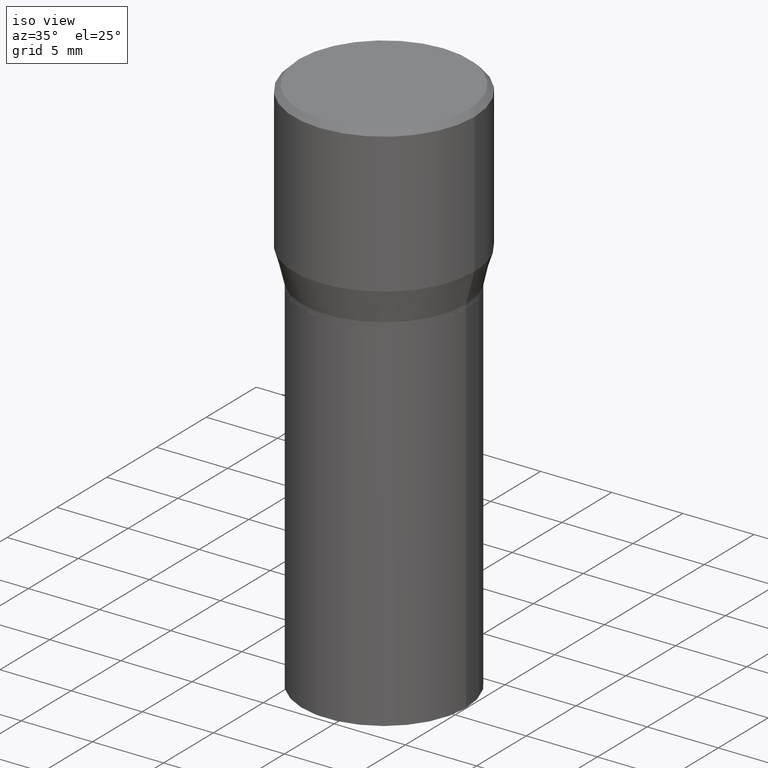
[diagram: clean part render]
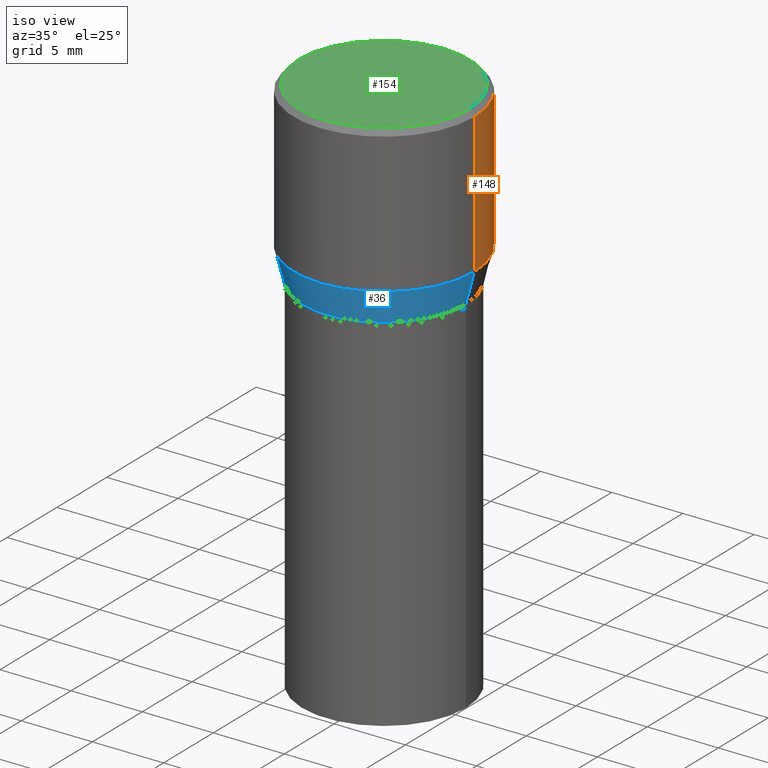
[diagram: same view with three faces highlighted in distinct colors, each labeled with its STEP entity id]
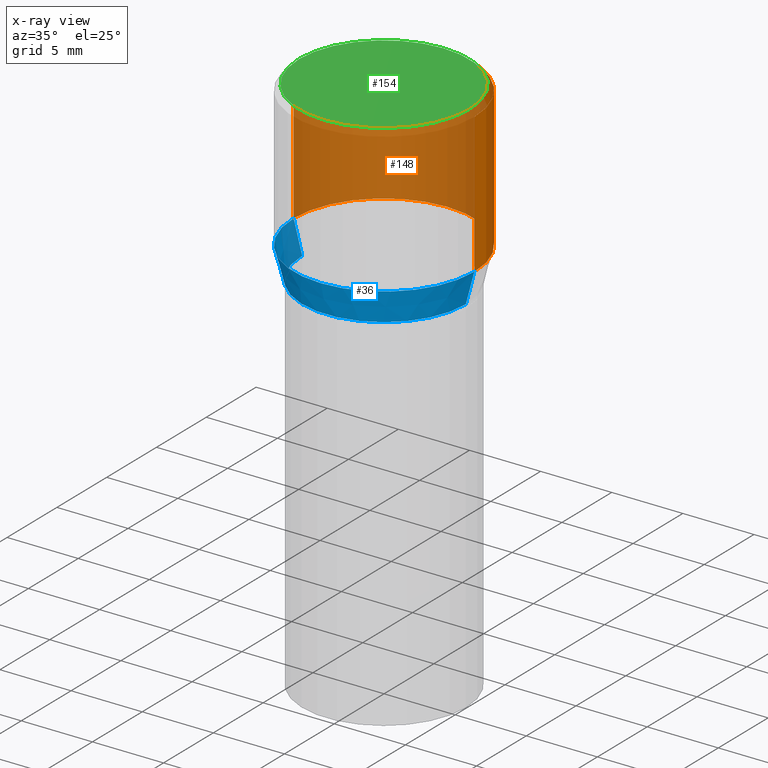
[diagram: x-ray of the same camera — body ghosted, the three highlighted faces saturated]
A machine part, iso view with three faces highlighted in distinct colors.
The next image is the same camera in x-ray (body ghosted, the three faces saturated) — at least one of them is partly hidden behind the body in this view.
Their STEP definitions:

[orange] entity #148 — the highlighted cylindrical surface (partial cylindrical patch) has radius 6.35 mm, axis along (-0, 0, 1).
#15 = CIRCLE ( 'NONE', #117, 0.2500000000000000000 ) ;
#30 = VERTEX_POINT ( 'NONE', #360 ) ;
#42 = LINE ( 'NONE', #114, #307 ) ;
#43 = CARTESIAN_POINT ( 'NONE',  ( 9.842606206466859638E-30, -1.405263310189985589E-15, -0.4024834085625100810 ) ) ;
#47 = CARTESIAN_POINT ( 'NONE',  ( 3.668203209277705088E-31, -5.237222008264718399E-17, -0.01499999999999999944 ) ) ;
#65 = CYLINDRICAL_SURFACE ( 'NONE', #254, 0.2500000000000000000 ) ;
#83 = DIRECTION ( 'NONE',  ( -2.445468806185136597E-29, 3.491481338843145583E-15, 1.000000000000000000 ) ) ;
#92 = FACE_OUTER_BOUND ( 'NONE', #162, .T. ) ;
#114 = CARTESIAN_POINT ( 'NONE',  ( 0.2500000000000000000, -1.745740669421566678E-15, 1.219044193948983948E-29 ) ) ;
#117 = AXIS2_PLACEMENT_3D ( 'NONE', #47, #275, #312 ) ;
#121 = CARTESIAN_POINT ( 'NONE',  ( -0.2500000000000000000, 3.710935292102651716E-16, -0.4024834085625100810 ) ) ;
#124 = CARTESIAN_POINT ( 'NONE',  ( -0.2500000000000000000, 1.776356839400250465E-15, -1.229733772563726445E-29 ) ) ;
#136 = VERTEX_POINT ( 'NONE', #138 ) ;
#138 = CARTESIAN_POINT ( 'NONE',  ( 0.2500000000000000000, -1.798112889504214151E-15, -0.01499999999999999944 ) ) ;
#148 = ADVANCED_FACE ( 'NONE', ( #92 ), #65, .T. ) ;
#156 = DIRECTION ( 'NONE',  ( -2.445468806185136877E-29, 3.491481338843145188E-15, 1.000000000000000000 ) ) ;
#157 = CIRCLE ( 'NONE', #268, 0.2500000000000000000 ) ;
#162 = EDGE_LOOP ( 'NONE', ( #213, #409, #279, #277 ) ) ;
#195 = DIRECTION ( 'NONE',  ( 1.000000000000000000, -6.982962677686265922E-15, 0.000000000000000000 ) ) ;
#213 = ORIENTED_EDGE ( 'NONE', *, *, #330, .T. ) ;
#214 = CARTESIAN_POINT ( 'NONE',  ( 0.000000000000000000, 0.000000000000000000, 0.000000000000000000 ) ) ;
#226 = EDGE_CURVE ( 'NONE', #252, #136, #42, .T. ) ;
#239 = DIRECTION ( 'NONE',  ( -2.445468806185136597E-29, 3.491481338843145583E-15, 1.000000000000000000 ) ) ;
#252 = VERTEX_POINT ( 'NONE', #269 ) ;
#254 = AXIS2_PLACEMENT_3D ( 'NONE', #214, #239, #449 ) ;
#268 = AXIS2_PLACEMENT_3D ( 'NONE', #43, #83, #195 ) ;
#269 = CARTESIAN_POINT ( 'NONE',  ( 0.2500000000000000000, -3.151003979611552069E-15, -0.4024834085625100810 ) ) ;
#275 = DIRECTION ( 'NONE',  ( -2.445468806185136597E-29, 3.491481338843145583E-15, 1.000000000000000000 ) ) ;
#277 = ORIENTED_EDGE ( 'NONE', *, *, #226, .F. ) ;
#279 = ORIENTED_EDGE ( 'NONE', *, *, #315, .F. ) ;
#303 = LINE ( 'NONE', #124, #336 ) ;
#307 = VECTOR ( 'NONE', #340, 39.37007874015748143 ) ;
#312 = DIRECTION ( 'NONE',  ( 1.000000000000000000, -6.982962677686266711E-15, 0.000000000000000000 ) ) ;
#315 = EDGE_CURVE ( 'NONE', #136, #30, #15, .T. ) ;
#330 = EDGE_CURVE ( 'NONE', #252, #385, #157, .T. ) ;
#336 = VECTOR ( 'NONE', #156, 39.37007874015748143 ) ;
#340 = DIRECTION ( 'NONE',  ( -2.445468806185136877E-29, 3.491481338843145188E-15, 1.000000000000000000 ) ) ;
#360 = CARTESIAN_POINT ( 'NONE',  ( -0.2500000000000000000, 1.047539074263934229E-15, -0.01499999999999999944 ) ) ;
#385 = VERTEX_POINT ( 'NONE', #121 ) ;
#406 = EDGE_CURVE ( 'NONE', #385, #30, #303, .T. ) ;
#409 = ORIENTED_EDGE ( 'NONE', *, *, #406, .T. ) ;
#449 = DIRECTION ( 'NONE',  ( 1.000000000000000000, -6.982962677686266711E-15, 4.876176775795935793E-29 ) ) ;

[blue] entity #36 — the highlighted conical surface has half-angle 15 deg.
#4 = DIRECTION ( 'NONE',  ( 1.000000000000000000, -6.982962677686265922E-15, 0.000000000000000000 ) ) ;
#6 = CARTESIAN_POINT ( 'NONE',  ( 0.2265499999999999736, -3.292816050662964671E-15, -0.4900000000000001021 ) ) ;
#11 = VECTOR ( 'NONE', #170, 39.37007874015747433 ) ;
#23 = EDGE_CURVE ( 'NONE', #241, #252, #137, .T. ) ;
#34 = CARTESIAN_POINT ( 'NONE',  ( 9.842606206466859638E-30, -1.405263310189985589E-15, -0.4024834085625100810 ) ) ;
#36 = ADVANCED_FACE ( 'NONE', ( #286 ), #337, .T. ) ;
#53 = EDGE_LOOP ( 'NONE', ( #202, #350, #100, #93 ) ) ;
#72 = EDGE_CURVE ( 'NONE', #196, #385, #324, .T. ) ;
#77 = CARTESIAN_POINT ( 'NONE',  ( -0.2265499999999999736, 1.350011205208151600E-16, -0.4900000000000001021 ) ) ;
#80 = AXIS2_PLACEMENT_3D ( 'NONE', #94, #242, #255 ) ;
#93 = ORIENTED_EDGE ( 'NONE', *, *, #267, .F. ) ;
#94 = CARTESIAN_POINT ( 'NONE',  ( 1.198279715030717173E-29, -1.710825856033141537E-15, -0.4900000000000001021 ) ) ;
#100 = ORIENTED_EDGE ( 'NONE', *, *, #23, .T. ) ;
#108 = CIRCLE ( 'NONE', #159, 0.2265499999999999736 ) ;
#119 = VECTOR ( 'NONE', #218, 39.37007874015747433 ) ;
#120 = DIRECTION ( 'NONE',  ( 1.000000000000000000, -6.982962677686265922E-15, 0.000000000000000000 ) ) ;
#121 = CARTESIAN_POINT ( 'NONE',  ( -0.2500000000000000000, 3.710935292102651716E-16, -0.4024834085625100810 ) ) ;
#137 = LINE ( 'NONE', #321, #119 ) ;
#153 = DIRECTION ( 'NONE',  ( -2.445468806185136597E-29, 3.491481338843145583E-15, 1.000000000000000000 ) ) ;
#159 = AXIS2_PLACEMENT_3D ( 'NONE', #439, #153, #120 ) ;
#170 = DIRECTION ( 'NONE',  ( -0.2588190451025214611, 5.211531920934551042E-15, 0.9659258262890682012 ) ) ;
#196 = VERTEX_POINT ( 'NONE', #77 ) ;
#202 = ORIENTED_EDGE ( 'NONE', *, *, #72, .F. ) ;
#218 = DIRECTION ( 'NONE',  ( 0.2588190451025214611, 1.565188264969621573E-15, 0.9659258262890682012 ) ) ;
#241 = VERTEX_POINT ( 'NONE', #6 ) ;
#242 = DIRECTION ( 'NONE',  ( -2.445468806185136597E-29, 3.491481338843145583E-15, 1.000000000000000000 ) ) ;
#252 = VERTEX_POINT ( 'NONE', #269 ) ;
#255 = DIRECTION ( 'NONE',  ( 1.000000000000000000, -6.982962677686265922E-15, 0.000000000000000000 ) ) ;
#267 = EDGE_CURVE ( 'NONE', #385, #252, #463, .T. ) ;
#269 = CARTESIAN_POINT ( 'NONE',  ( 0.2500000000000000000, -3.151003979611552069E-15, -0.4024834085625100810 ) ) ;
#286 = FACE_OUTER_BOUND ( 'NONE', #53, .T. ) ;
#321 = CARTESIAN_POINT ( 'NONE',  ( 0.2265499999999999736, -3.292816050662964671E-15, -0.4900000000000001021 ) ) ;
#324 = LINE ( 'NONE', #328, #11 ) ;
#328 = CARTESIAN_POINT ( 'NONE',  ( -0.2265499999999999736, -1.010912881686348269E-16, -0.4900000000000001021 ) ) ;
#337 = CONICAL_SURFACE ( 'NONE', #80, 0.2265499999999999736, 0.2617993877991501295 ) ;
#350 = ORIENTED_EDGE ( 'NONE', *, *, #361, .T. ) ;
#361 = EDGE_CURVE ( 'NONE', #196, #241, #108, .T. ) ;
#380 = AXIS2_PLACEMENT_3D ( 'NONE', #34, #397, #4 ) ;
#385 = VERTEX_POINT ( 'NONE', #121 ) ;
#397 = DIRECTION ( 'NONE',  ( -2.445468806185136597E-29, 3.491481338843145583E-15, 1.000000000000000000 ) ) ;
#439 = CARTESIAN_POINT ( 'NONE',  ( 1.198279715030717173E-29, -1.710825856033141537E-15, -0.4900000000000001021 ) ) ;
#463 = CIRCLE ( 'NONE', #380, 0.2500000000000000000 ) ;

[green] entity #154 — the highlighted planar face has unit normal (0, -0, -1).
#13 = DIRECTION ( 'NONE',  ( 1.000000000000000000, -6.982962677686267499E-15, 4.878549297894958458E-29 ) ) ;
#17 = VERTEX_POINT ( 'NONE', #249 ) ;
#22 = CARTESIAN_POINT ( 'NONE',  ( -0.2349999999999999867, 1.667182339297596256E-15, 1.568636843340762393E-16 ) ) ;
#60 = VERTEX_POINT ( 'NONE', #22 ) ;
#78 = AXIS2_PLACEMENT_3D ( 'NONE', #161, #373, #90 ) ;
#90 = DIRECTION ( 'NONE',  ( 1.000000000000000000, -6.982962677686267499E-15, 4.878549297894958458E-29 ) ) ;
#147 = PLANE ( 'NONE',  #210 ) ;
#154 = ADVANCED_FACE ( 'NONE', ( #190 ), #147, .F. ) ;
#161 = CARTESIAN_POINT ( 'NONE',  ( -3.836052468622837406E-45, 5.476866265946494270E-31, 1.568636843340877764E-16 ) ) ;
#176 = EDGE_LOOP ( 'NONE', ( #216, #357 ) ) ;
#190 = FACE_OUTER_BOUND ( 'NONE', #176, .T. ) ;
#194 = DIRECTION ( 'NONE',  ( -2.445468806185136597E-29, 3.491481338843145583E-15, 1.000000000000000000 ) ) ;
#210 = AXIS2_PLACEMENT_3D ( 'NONE', #432, #331, #401 ) ;
#216 = ORIENTED_EDGE ( 'NONE', *, *, #377, .T. ) ;
#220 = CIRCLE ( 'NONE', #422, 0.2349999999999999867 ) ;
#228 = CIRCLE ( 'NONE', #78, 0.2349999999999999867 ) ;
#249 = CARTESIAN_POINT ( 'NONE',  ( 0.2349999999999999867, -1.689856874500919833E-15, 1.568636843340994368E-16 ) ) ;
#331 = DIRECTION ( 'NONE',  ( 2.438088387897960049E-29, -3.491481338843145188E-15, -1.000000000000000000 ) ) ;
#357 = ORIENTED_EDGE ( 'NONE', *, *, #407, .T. ) ;
#373 = DIRECTION ( 'NONE',  ( -2.445468806185136597E-29, 3.491481338843145583E-15, 1.000000000000000000 ) ) ;
#377 = EDGE_CURVE ( 'NONE', #60, #17, #220, .T. ) ;
#401 = DIRECTION ( 'NONE',  ( -1.000000000000000000, 6.982962677686265922E-15, -4.876176775795935793E-29 ) ) ;
#407 = EDGE_CURVE ( 'NONE', #17, #60, #228, .T. ) ;
#411 = CARTESIAN_POINT ( 'NONE',  ( -3.836052468622837406E-45, 5.476866265946494270E-31, 1.568636843340877764E-16 ) ) ;
#422 = AXIS2_PLACEMENT_3D ( 'NONE', #411, #194, #13 ) ;
#432 = CARTESIAN_POINT ( 'NONE',  ( 1.640996229256272519E-15, 0.2349999999999999867, -7.420662724610952803E-16 ) ) ;